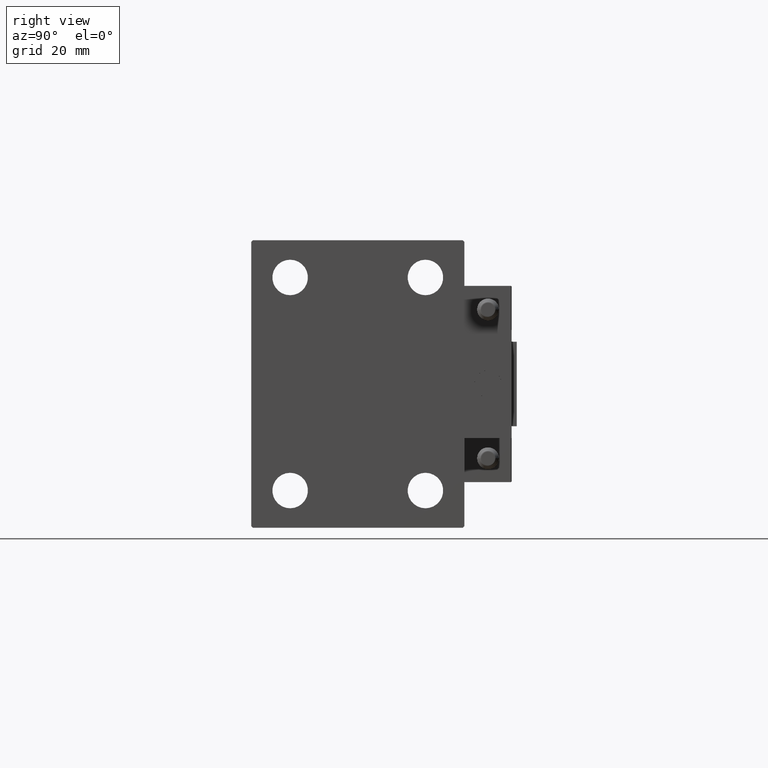
[diagram: clean part render]
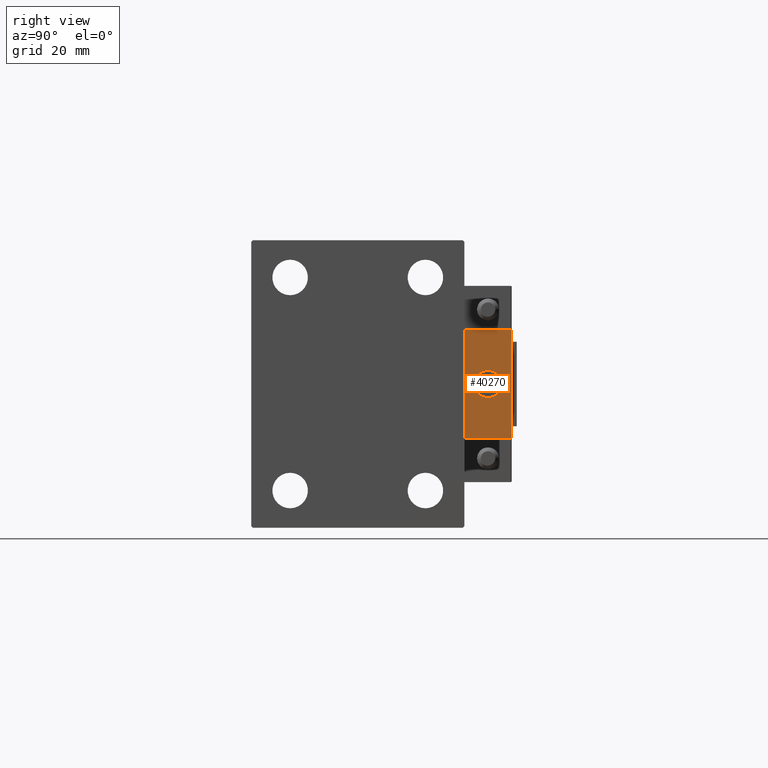
[diagram: same view with one face highlighted and labeled with its STEP entity id]
A machine part, right view. The second image highlights one B-rep face of the part: STEP entity #40270.
In plain terms, the highlighted planar face has unit normal (-1, 0, 0).
Its self-contained STEP definition (entity closure, byte-faithful):
#158 = CARTESIAN_POINT ( 'NONE',  ( 10.00000000000000000, 0.000000000000000000, 0.000000000000000000 ) ) ;
#1959 = CARTESIAN_POINT ( 'NONE',  ( 10.00000000000000000, 7.000000000000000000, 15.99999999999999289 ) ) ;
#2762 = DIRECTION ( 'NONE',  ( 0.000000000000000000, -1.000000000000000000, 0.000000000000000000 ) ) ;
#2831 = EDGE_CURVE ( 'NONE', #28261, #8644, #37029, .T. ) ;
#3406 = DIRECTION ( 'NONE',  ( -1.000000000000000000, 0.000000000000000000, 0.000000000000000000 ) ) ;
#4254 = FACE_OUTER_BOUND ( 'NONE', #25747, .T. ) ;
#4641 = VECTOR ( 'NONE', #2762, 1000.000000000000000 ) ;
#6920 = CARTESIAN_POINT ( 'NONE',  ( 10.00000000000000000, -7.000000000000000000, 15.99999999999999289 ) ) ;
#8038 = EDGE_CURVE ( 'NONE', #8644, #28261, #15850, .T. ) ;
#8600 = PLANE ( 'NONE',  #34761 ) ;
#8644 = VERTEX_POINT ( 'NONE', #31277 ) ;
#10763 = EDGE_CURVE ( 'NONE', #12622, #36888, #14363, .T. ) ;
#10966 = CARTESIAN_POINT ( 'NONE',  ( 10.00000000000000000, 7.000000000000000000, -16.00000000000000711 ) ) ;
#11262 = CARTESIAN_POINT ( 'NONE',  ( 10.00000000000000000, 7.000000000000000000, 15.99999999999999289 ) ) ;
#12455 = FACE_BOUND ( 'NONE', #31809, .T. ) ;
#12622 = VERTEX_POINT ( 'NONE', #11262 ) ;
#14363 = LINE ( 'NONE', #33050, #32277 ) ;
#14965 = AXIS2_PLACEMENT_3D ( 'NONE', #47056, #35058, #15861 ) ;
#15199 = DIRECTION ( 'NONE',  ( 0.000000000000000000, 0.000000000000000000, 1.000000000000000000 ) ) ;
#15850 = CIRCLE ( 'NONE', #17446, 4.000000000000000000 ) ;
#15861 = DIRECTION ( 'NONE',  ( 0.000000000000000000, 0.000000000000000000, 1.000000000000000000 ) ) ;
#17446 = AXIS2_PLACEMENT_3D ( 'NONE', #29789, #3406, #15199 ) ;
#19875 = DIRECTION ( 'NONE',  ( -0.000000000000000000, 0.000000000000000000, 1.000000000000000000 ) ) ;
#20005 = EDGE_CURVE ( 'NONE', #36888, #41069, #42428, .T. ) ;
#22053 = CARTESIAN_POINT ( 'NONE',  ( 10.00000000000000000, 0.000000000000000000, 4.000000000000000000 ) ) ;
#22734 = EDGE_CURVE ( 'NONE', #48775, #41069, #29978, .T. ) ;
#22928 = CARTESIAN_POINT ( 'NONE',  ( 10.00000000000000000, -7.000000000000000000, 15.99999999999999289 ) ) ;
#25747 = EDGE_LOOP ( 'NONE', ( #44812, #30588, #37585, #40104 ) ) ;
#27178 = VECTOR ( 'NONE', #48045, 1000.000000000000000 ) ;
#28261 = VERTEX_POINT ( 'NONE', #22053 ) ;
#29789 = CARTESIAN_POINT ( 'NONE',  ( 10.00000000000000000, 0.000000000000000000, 0.000000000000000000 ) ) ;
#29944 = EDGE_CURVE ( 'NONE', #12622, #48775, #43683, .T. ) ;
#29978 = LINE ( 'NONE', #6920, #40836 ) ;
#30222 = DIRECTION ( 'NONE',  ( 0.000000000000000000, 0.000000000000000000, -1.000000000000000000 ) ) ;
#30588 = ORIENTED_EDGE ( 'NONE', *, *, #20005, .F. ) ;
#30741 = ORIENTED_EDGE ( 'NONE', *, *, #2831, .T. ) ;
#31277 = CARTESIAN_POINT ( 'NONE',  ( 10.00000000000000000, 4.898587196589412829E-16, -4.000000000000000000 ) ) ;
#31809 = EDGE_LOOP ( 'NONE', ( #30741, #35207 ) ) ;
#32277 = VECTOR ( 'NONE', #38398, 1000.000000000000000 ) ;
#33050 = CARTESIAN_POINT ( 'NONE',  ( 10.00000000000000000, 7.000000000000000000, 15.99999999999999289 ) ) ;
#34761 = AXIS2_PLACEMENT_3D ( 'NONE', #158, #42632, #19875 ) ;
#35058 = DIRECTION ( 'NONE',  ( -1.000000000000000000, 0.000000000000000000, 0.000000000000000000 ) ) ;
#35207 = ORIENTED_EDGE ( 'NONE', *, *, #8038, .T. ) ;
#36888 = VERTEX_POINT ( 'NONE', #44486 ) ;
#37029 = CIRCLE ( 'NONE', #14965, 4.000000000000000000 ) ;
#37585 = ORIENTED_EDGE ( 'NONE', *, *, #10763, .F. ) ;
#38398 = DIRECTION ( 'NONE',  ( 0.000000000000000000, 0.000000000000000000, -1.000000000000000000 ) ) ;
#40104 = ORIENTED_EDGE ( 'NONE', *, *, #29944, .T. ) ;
#40270 = ADVANCED_FACE ( 'NONE', ( #12455, #4254 ), #8600, .F. ) ;
#40836 = VECTOR ( 'NONE', #30222, 1000.000000000000000 ) ;
#41069 = VERTEX_POINT ( 'NONE', #46697 ) ;
#42428 = LINE ( 'NONE', #10966, #4641 ) ;
#42632 = DIRECTION ( 'NONE',  ( -1.000000000000000000, 0.000000000000000000, -0.000000000000000000 ) ) ;
#43683 = LINE ( 'NONE', #1959, #27178 ) ;
#44486 = CARTESIAN_POINT ( 'NONE',  ( 10.00000000000000000, 7.000000000000000000, -16.00000000000000711 ) ) ;
#44812 = ORIENTED_EDGE ( 'NONE', *, *, #22734, .T. ) ;
#46697 = CARTESIAN_POINT ( 'NONE',  ( 10.00000000000000000, -7.000000000000000000, -16.00000000000000711 ) ) ;
#47056 = CARTESIAN_POINT ( 'NONE',  ( 10.00000000000000000, 0.000000000000000000, 0.000000000000000000 ) ) ;
#48045 = DIRECTION ( 'NONE',  ( 0.000000000000000000, -1.000000000000000000, 0.000000000000000000 ) ) ;
#48775 = VERTEX_POINT ( 'NONE', #22928 ) ;